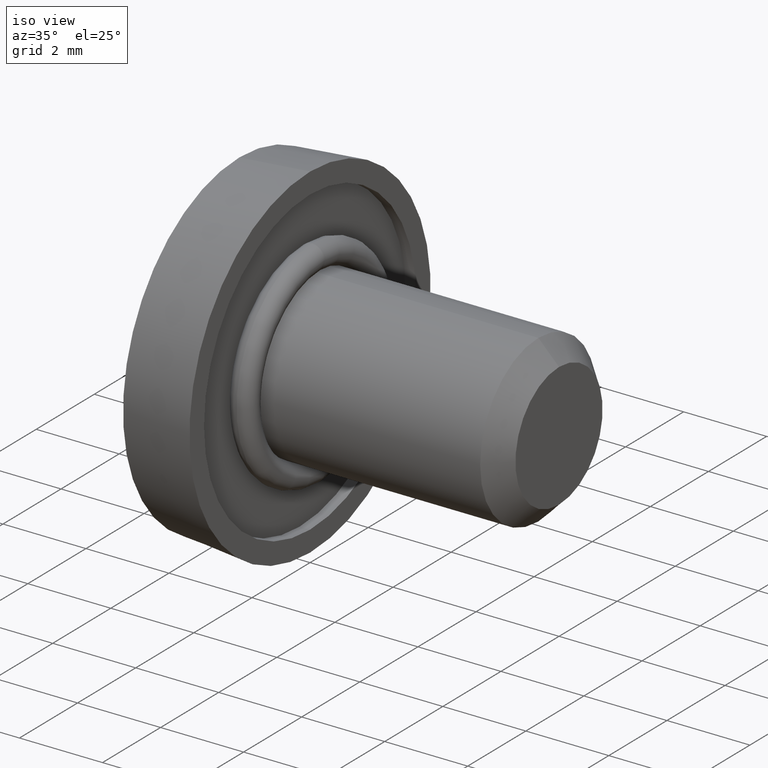
[diagram: clean part render]
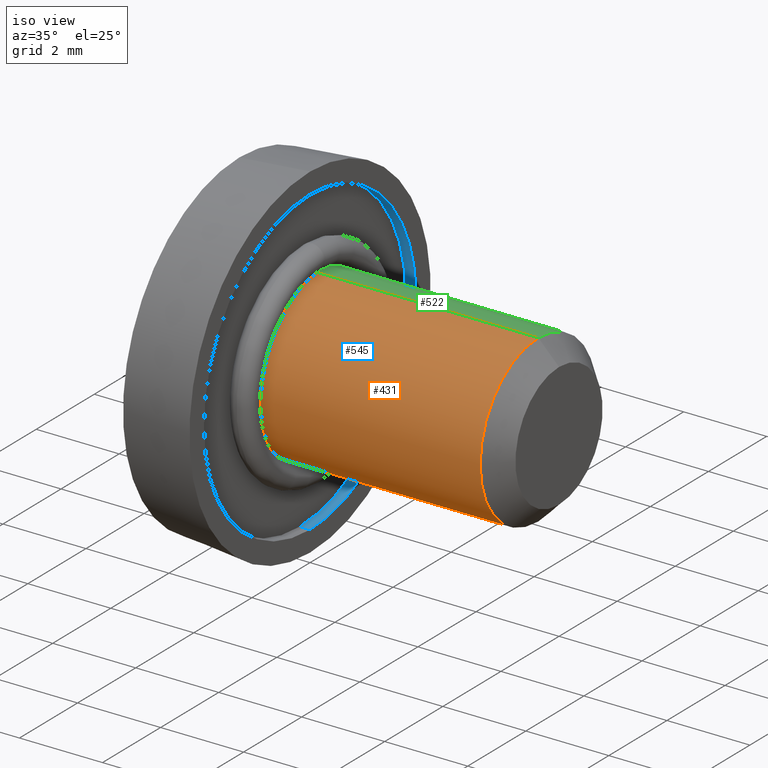
[diagram: same view with three faces highlighted in distinct colors, each labeled with its STEP entity id]
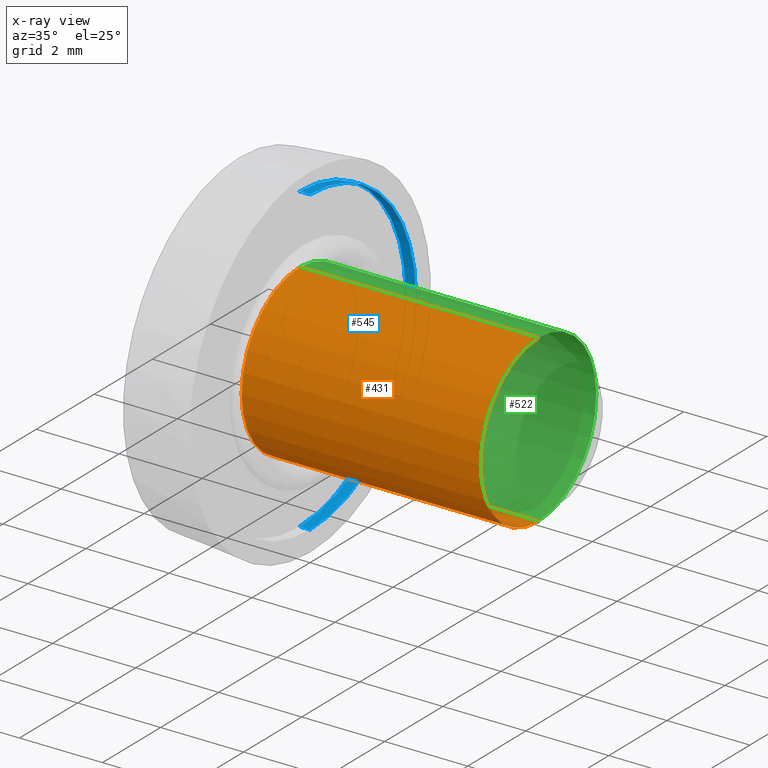
[diagram: x-ray of the same camera — body ghosted, the three highlighted faces saturated]
A machine part, iso view with three faces highlighted in distinct colors.
The next image is the same camera in x-ray (body ghosted, the three faces saturated) — at least one of them is partly hidden behind the body in this view.
Their STEP definitions:

[orange] entity #431 — the highlighted cylindrical surface (partial cylindrical patch) has radius 2 mm, axis along (-1, -0, -0).
#29 = CYLINDRICAL_SURFACE ( 'NONE', #1161, 2.000000000000000000 ) ;
#67 = VERTEX_POINT ( 'NONE', #1105 ) ;
#97 = VERTEX_POINT ( 'NONE', #989 ) ;
#214 = CARTESIAN_POINT ( 'NONE',  ( 6.000000000000000000, 0.0000000000000000000, 0.0000000000000000000 ) ) ;
#218 = AXIS2_PLACEMENT_3D ( 'NONE', #828, #348, #649 ) ;
#225 = EDGE_CURVE ( 'NONE', #597, #1066, #366, .T. ) ;
#251 = EDGE_CURVE ( 'NONE', #1066, #97, #574, .T. ) ;
#263 = CIRCLE ( 'NONE', #791, 2.000000000000000000 ) ;
#288 = EDGE_LOOP ( 'NONE', ( #1062, #925, #936, #1216 ) ) ;
#290 = EDGE_CURVE ( 'NONE', #67, #97, #1029, .T. ) ;
#329 = CARTESIAN_POINT ( 'NONE',  ( 5.499999999999998200, 0.0000000000000000000, 0.0000000000000000000 ) ) ;
#348 = DIRECTION ( 'NONE',  ( 1.000000000000000000, 0.0000000000000000000, 0.0000000000000000000 ) ) ;
#366 = LINE ( 'NONE', #567, #601 ) ;
#418 = EDGE_CURVE ( 'NONE', #67, #597, #263, .T. ) ;
#431 = ADVANCED_FACE ( 'NONE', ( #985 ), #29, .T. ) ;
#558 = DIRECTION ( 'NONE',  ( 0.0000000000000000000, 0.0000000000000000000, 1.000000000000000000 ) ) ;
#567 = CARTESIAN_POINT ( 'NONE',  ( 6.000000000000000000, 0.0000000000000000000, 2.000000000000000000 ) ) ;
#569 = DIRECTION ( 'NONE',  ( 0.0000000000000000000, 0.0000000000000000000, -1.000000000000000000 ) ) ;
#574 = CIRCLE ( 'NONE', #218, 2.000000000000000000 ) ;
#597 = VERTEX_POINT ( 'NONE', #1211 ) ;
#601 = VECTOR ( 'NONE', #793, 1000.000000000000000 ) ;
#649 = DIRECTION ( 'NONE',  ( 0.0000000000000000000, 0.0000000000000000000, -1.000000000000000000 ) ) ;
#732 = DIRECTION ( 'NONE',  ( -1.000000000000000000, -0.0000000000000000000, -0.0000000000000000000 ) ) ;
#766 = DIRECTION ( 'NONE',  ( -1.000000000000000000, 0.0000000000000000000, 0.0000000000000000000 ) ) ;
#791 = AXIS2_PLACEMENT_3D ( 'NONE', #329, #766, #569 ) ;
#793 = DIRECTION ( 'NONE',  ( -1.000000000000000000, -0.0000000000000000000, -0.0000000000000000000 ) ) ;
#828 = CARTESIAN_POINT ( 'NONE',  ( -0.2500000000000000000, 0.0000000000000000000, 0.0000000000000000000 ) ) ;
#859 = CARTESIAN_POINT ( 'NONE',  ( 6.000000000000000000, 2.449293598294706400E-016, -2.000000000000000000 ) ) ;
#869 = DIRECTION ( 'NONE',  ( -1.000000000000000000, -0.0000000000000000000, -0.0000000000000000000 ) ) ;
#887 = CARTESIAN_POINT ( 'NONE',  ( -0.2500000000000000000, 0.0000000000000000000, 2.000000000000000000 ) ) ;
#925 = ORIENTED_EDGE ( 'NONE', *, *, #418, .T. ) ;
#936 = ORIENTED_EDGE ( 'NONE', *, *, #225, .T. ) ;
#985 = FACE_OUTER_BOUND ( 'NONE', #288, .T. ) ;
#989 = CARTESIAN_POINT ( 'NONE',  ( -0.2500000000000000000, 2.449293598294706400E-016, -2.000000000000000000 ) ) ;
#1029 = LINE ( 'NONE', #859, #1057 ) ;
#1057 = VECTOR ( 'NONE', #732, 1000.000000000000000 ) ;
#1062 = ORIENTED_EDGE ( 'NONE', *, *, #290, .F. ) ;
#1066 = VERTEX_POINT ( 'NONE', #887 ) ;
#1105 = CARTESIAN_POINT ( 'NONE',  ( 5.499999999999998200, 2.449293598294706900E-016, -2.000000000000000000 ) ) ;
#1161 = AXIS2_PLACEMENT_3D ( 'NONE', #214, #869, #558 ) ;
#1211 = CARTESIAN_POINT ( 'NONE',  ( 5.499999999999998200, 0.0000000000000000000, 2.000000000000000000 ) ) ;
#1216 = ORIENTED_EDGE ( 'NONE', *, *, #251, .T. ) ;

[blue] entity #545 — the highlighted cylindrical surface (partial cylindrical patch) has radius 3.65 mm, axis along (1, 0, 0).
#34 = DIRECTION ( 'NONE',  ( 1.000000000000000000, -0.0000000000000000000, -0.0000000000000000000 ) ) ;
#89 = ORIENTED_EDGE ( 'NONE', *, *, #131, .F. ) ;
#115 = CARTESIAN_POINT ( 'NONE',  ( -0.2500000000000000000, 0.0000000000000000000, 0.0000000000000000000 ) ) ;
#131 = EDGE_CURVE ( 'NONE', #938, #229, #474, .T. ) ;
#156 = ORIENTED_EDGE ( 'NONE', *, *, #647, .T. ) ;
#161 = VECTOR ( 'NONE', #1003, 1000.000000000000000 ) ;
#167 = CARTESIAN_POINT ( 'NONE',  ( -0.2500000000000000000, 0.0000000000000000000, -3.649999999999999900 ) ) ;
#216 = EDGE_LOOP ( 'NONE', ( #89, #495, #156, #562 ) ) ;
#229 = VERTEX_POINT ( 'NONE', #953 ) ;
#254 = CARTESIAN_POINT ( 'NONE',  ( 0.0000000000000000000, 0.0000000000000000000, -3.649999999999999900 ) ) ;
#335 = CARTESIAN_POINT ( 'NONE',  ( -0.2500000000000000000, 4.469960816887839400E-016, 3.649999999999999900 ) ) ;
#365 = LINE ( 'NONE', #798, #573 ) ;
#474 = LINE ( 'NONE', #1092, #161 ) ;
#482 = EDGE_CURVE ( 'NONE', #899, #938, #931, .T. ) ;
#495 = ORIENTED_EDGE ( 'NONE', *, *, #482, .F. ) ;
#545 = ADVANCED_FACE ( 'NONE', ( #902 ), #873, .F. ) ;
#554 = DIRECTION ( 'NONE',  ( 0.0000000000000000000, 0.0000000000000000000, -1.000000000000000000 ) ) ;
#562 = ORIENTED_EDGE ( 'NONE', *, *, #928, .T. ) ;
#564 = CARTESIAN_POINT ( 'NONE',  ( -0.2500000000000000000, 0.0000000000000000000, 0.0000000000000000000 ) ) ;
#573 = VECTOR ( 'NONE', #830, 1000.000000000000000 ) ;
#610 = CARTESIAN_POINT ( 'NONE',  ( 0.0000000000000000000, 0.0000000000000000000, 0.0000000000000000000 ) ) ;
#625 = DIRECTION ( 'NONE',  ( 1.000000000000000000, 0.0000000000000000000, 0.0000000000000000000 ) ) ;
#647 = EDGE_CURVE ( 'NONE', #899, #995, #365, .T. ) ;
#702 = AXIS2_PLACEMENT_3D ( 'NONE', #564, #625, #960 ) ;
#738 = DIRECTION ( 'NONE',  ( 1.000000000000000000, 0.0000000000000000000, 0.0000000000000000000 ) ) ;
#798 = CARTESIAN_POINT ( 'NONE',  ( -0.2500000000000000000, 0.0000000000000000000, -3.649999999999999900 ) ) ;
#830 = DIRECTION ( 'NONE',  ( 1.000000000000000000, -0.0000000000000000000, -0.0000000000000000000 ) ) ;
#842 = DIRECTION ( 'NONE',  ( 0.0000000000000000000, 0.0000000000000000000, -1.000000000000000000 ) ) ;
#873 = CYLINDRICAL_SURFACE ( 'NONE', #961, 3.649999999999999900 ) ;
#899 = VERTEX_POINT ( 'NONE', #167 ) ;
#902 = FACE_OUTER_BOUND ( 'NONE', #216, .T. ) ;
#928 = EDGE_CURVE ( 'NONE', #995, #229, #1153, .T. ) ;
#931 = CIRCLE ( 'NONE', #702, 3.649999999999999900 ) ;
#938 = VERTEX_POINT ( 'NONE', #335 ) ;
#953 = CARTESIAN_POINT ( 'NONE',  ( 0.0000000000000000000, 4.469960816887839400E-016, 3.649999999999999900 ) ) ;
#960 = DIRECTION ( 'NONE',  ( 0.0000000000000000000, 0.0000000000000000000, -1.000000000000000000 ) ) ;
#961 = AXIS2_PLACEMENT_3D ( 'NONE', #115, #34, #554 ) ;
#995 = VERTEX_POINT ( 'NONE', #254 ) ;
#1003 = DIRECTION ( 'NONE',  ( 1.000000000000000000, -0.0000000000000000000, -0.0000000000000000000 ) ) ;
#1059 = AXIS2_PLACEMENT_3D ( 'NONE', #610, #738, #842 ) ;
#1092 = CARTESIAN_POINT ( 'NONE',  ( -0.2500000000000000000, 4.469960816887839400E-016, 3.649999999999999900 ) ) ;
#1153 = CIRCLE ( 'NONE', #1059, 3.649999999999999900 ) ;

[green] entity #522 — the highlighted cylindrical surface (partial cylindrical patch) has radius 2 mm, axis along (-1, -0, -0).
#67 = VERTEX_POINT ( 'NONE', #1105 ) ;
#97 = VERTEX_POINT ( 'NONE', #989 ) ;
#128 = CYLINDRICAL_SURFACE ( 'NONE', #903, 2.000000000000000000 ) ;
#154 = ORIENTED_EDGE ( 'NONE', *, *, #806, .T. ) ;
#210 = DIRECTION ( 'NONE',  ( 1.000000000000000000, 0.0000000000000000000, 0.0000000000000000000 ) ) ;
#225 = EDGE_CURVE ( 'NONE', #597, #1066, #366, .T. ) ;
#227 = EDGE_CURVE ( 'NONE', #597, #67, #874, .T. ) ;
#290 = EDGE_CURVE ( 'NONE', #67, #97, #1029, .T. ) ;
#291 = ORIENTED_EDGE ( 'NONE', *, *, #225, .F. ) ;
#366 = LINE ( 'NONE', #567, #601 ) ;
#485 = CIRCLE ( 'NONE', #942, 2.000000000000000000 ) ;
#490 = DIRECTION ( 'NONE',  ( -1.000000000000000000, -0.0000000000000000000, -0.0000000000000000000 ) ) ;
#522 = ADVANCED_FACE ( 'NONE', ( #633 ), #128, .T. ) ;
#567 = CARTESIAN_POINT ( 'NONE',  ( 6.000000000000000000, 0.0000000000000000000, 2.000000000000000000 ) ) ;
#590 = DIRECTION ( 'NONE',  ( 0.0000000000000000000, 0.0000000000000000000, -1.000000000000000000 ) ) ;
#597 = VERTEX_POINT ( 'NONE', #1211 ) ;
#601 = VECTOR ( 'NONE', #793, 1000.000000000000000 ) ;
#633 = FACE_OUTER_BOUND ( 'NONE', #664, .T. ) ;
#664 = EDGE_LOOP ( 'NONE', ( #694, #1135, #154, #291 ) ) ;
#688 = CARTESIAN_POINT ( 'NONE',  ( 6.000000000000000000, 0.0000000000000000000, 0.0000000000000000000 ) ) ;
#694 = ORIENTED_EDGE ( 'NONE', *, *, #227, .T. ) ;
#732 = DIRECTION ( 'NONE',  ( -1.000000000000000000, -0.0000000000000000000, -0.0000000000000000000 ) ) ;
#793 = DIRECTION ( 'NONE',  ( -1.000000000000000000, -0.0000000000000000000, -0.0000000000000000000 ) ) ;
#806 = EDGE_CURVE ( 'NONE', #97, #1066, #485, .T. ) ;
#859 = CARTESIAN_POINT ( 'NONE',  ( 6.000000000000000000, 2.449293598294706400E-016, -2.000000000000000000 ) ) ;
#874 = CIRCLE ( 'NONE', #1210, 2.000000000000000000 ) ;
#875 = DIRECTION ( 'NONE',  ( 0.0000000000000000000, 0.0000000000000000000, 1.000000000000000000 ) ) ;
#887 = CARTESIAN_POINT ( 'NONE',  ( -0.2500000000000000000, 0.0000000000000000000, 2.000000000000000000 ) ) ;
#903 = AXIS2_PLACEMENT_3D ( 'NONE', #688, #490, #875 ) ;
#942 = AXIS2_PLACEMENT_3D ( 'NONE', #1187, #210, #1201 ) ;
#989 = CARTESIAN_POINT ( 'NONE',  ( -0.2500000000000000000, 2.449293598294706400E-016, -2.000000000000000000 ) ) ;
#1029 = LINE ( 'NONE', #859, #1057 ) ;
#1057 = VECTOR ( 'NONE', #732, 1000.000000000000000 ) ;
#1066 = VERTEX_POINT ( 'NONE', #887 ) ;
#1070 = CARTESIAN_POINT ( 'NONE',  ( 5.499999999999998200, 0.0000000000000000000, 0.0000000000000000000 ) ) ;
#1105 = CARTESIAN_POINT ( 'NONE',  ( 5.499999999999998200, 2.449293598294706900E-016, -2.000000000000000000 ) ) ;
#1135 = ORIENTED_EDGE ( 'NONE', *, *, #290, .T. ) ;
#1159 = DIRECTION ( 'NONE',  ( -1.000000000000000000, 0.0000000000000000000, 0.0000000000000000000 ) ) ;
#1187 = CARTESIAN_POINT ( 'NONE',  ( -0.2500000000000000000, 0.0000000000000000000, 0.0000000000000000000 ) ) ;
#1201 = DIRECTION ( 'NONE',  ( 0.0000000000000000000, 0.0000000000000000000, -1.000000000000000000 ) ) ;
#1210 = AXIS2_PLACEMENT_3D ( 'NONE', #1070, #1159, #590 ) ;
#1211 = CARTESIAN_POINT ( 'NONE',  ( 5.499999999999998200, 0.0000000000000000000, 2.000000000000000000 ) ) ;